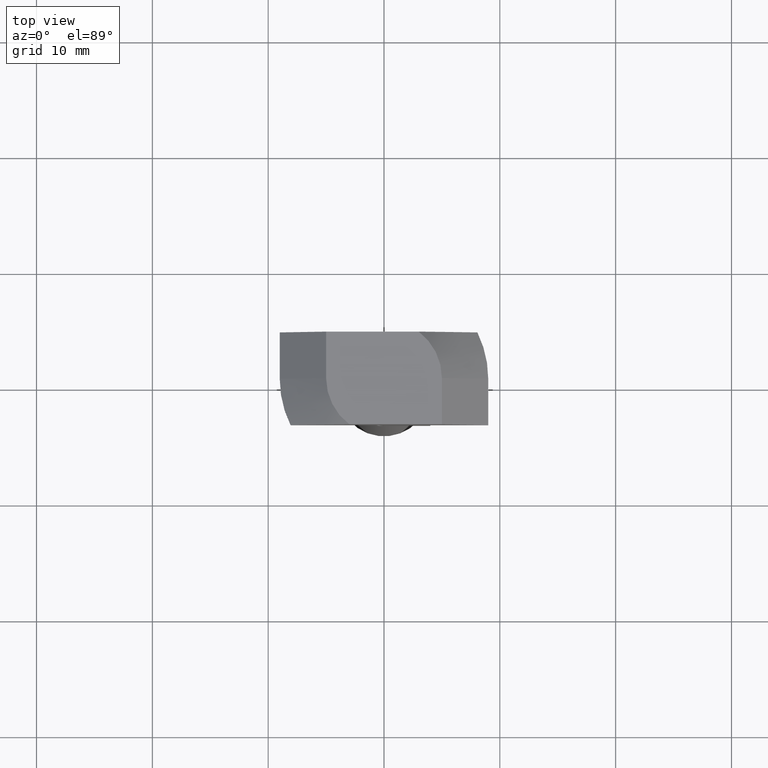
[diagram: clean part render]
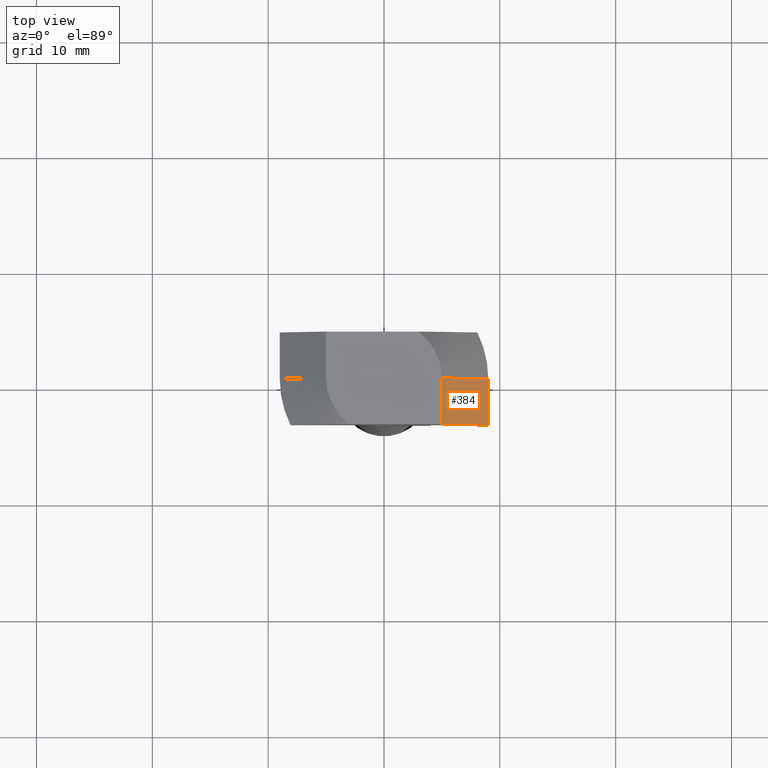
[diagram: same view with one face highlighted and labeled with its STEP entity id]
A machine part, top view. The second image highlights one B-rep face of the part: STEP entity #384.
In plain terms, the highlighted planar face has unit normal (0.7071, 0, 0.7071).
Its self-contained STEP definition (entity closure, byte-faithful):
#35=LINE('',#616,#69);
#41=LINE('',#637,#75);
#43=LINE('',#641,#77);
#44=LINE('',#642,#78);
#69=VECTOR('',#500,5.65685424949238);
#75=VECTOR('',#520,4.);
#77=VECTOR('',#524,4.);
#78=VECTOR('',#525,5.65685424949238);
#92=PLANE('',#424);
#126=FACE_OUTER_BOUND('',#154,.T.);
#154=EDGE_LOOP('',(#325,#326,#327,#328));
#200=VERTEX_POINT('',#613);
#201=VERTEX_POINT('',#615);
#206=VERTEX_POINT('',#636);
#207=VERTEX_POINT('',#640);
#241=EDGE_CURVE('',#200,#201,#35,.T.);
#251=EDGE_CURVE('',#201,#206,#41,.T.);
#253=EDGE_CURVE('',#200,#207,#43,.T.);
#254=EDGE_CURVE('',#206,#207,#44,.T.);
#325=ORIENTED_EDGE('',*,*,#241,.F.);
#326=ORIENTED_EDGE('',*,*,#253,.T.);
#327=ORIENTED_EDGE('',*,*,#254,.F.);
#328=ORIENTED_EDGE('',*,*,#251,.F.);
#384=ADVANCED_FACE('',(#126),#92,.T.);
#424=AXIS2_PLACEMENT_3D('',#639,#522,#523);
#500=DIRECTION('',(0.707106781186547,0.,-0.707106781186548));
#520=DIRECTION('',(0.,-1.,0.));
#522=DIRECTION('center_axis',(0.707106781186548,0.,0.707106781186547));
#523=DIRECTION('ref_axis',(0.707106781186547,0.,-0.707106781186548));
#524=DIRECTION('',(0.,-1.,0.));
#525=DIRECTION('',(-0.707106781186547,0.,0.707106781186548));
#613=CARTESIAN_POINT('',(5.,0.,0.));
#615=CARTESIAN_POINT('',(9.,0.,-4.));
#616=CARTESIAN_POINT('',(7.,0.,-2.));
#636=CARTESIAN_POINT('',(9.,-4.,-4.));
#637=CARTESIAN_POINT('',(9.,0.,-4.));
#639=CARTESIAN_POINT('Origin',(5.,0.,0.));
#640=CARTESIAN_POINT('',(5.,-4.,0.));
#641=CARTESIAN_POINT('',(5.,0.,1.96261524244674E-16));
#642=CARTESIAN_POINT('',(9.,-4.,-4.));